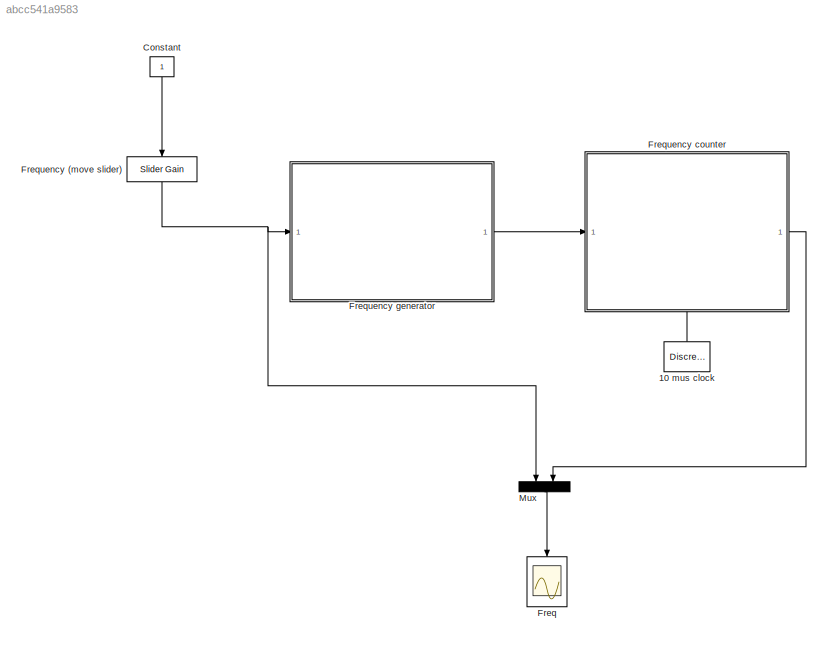
MODEL slx_abcc541a9583
KIND model
CONFIG AbsTol = auto
CONFIG EnableMultiTasking = on
CONFIG FixedStep = 5e-6
CONFIG MaxStep = auto
CONFIG MinStep = auto
CONFIG RelTol = 1e-4
CONFIG SampleTimeConstraint = Unconstrained
CONFIG Solver = ode45
CONFIG SolverName = ode45
CONFIG StartTime = 0.0
CONFIG StopTime = 50
BLOCK [DiscretePulseGenerator] 10 mus clock
  NameLocation = left
  Period = 1e-3
  Ports = [0, 1]
  PulseType = Time based
  PulseWidth = 50
BLOCK [Constant] Constant
  NameLocation = left
BLOCK [Scope] Freq
  Floating = off
  NameLocation = left
  NumInputPorts = 1
  Ports = [1]
  ScopeSpecificationString = Simulink.scopes.TimeScopeBlockCfg('CurrentConfiguration', extmgr.ConfigurationSet(extmgr.Configuration('Core','General UI',true),extmgr.Configuration('Core','Source UI',true),extmgr.Configuration('Sources','WiredSimulink',true,'DataLoggingVariableName','ScopeData1','DataLoggingSaveFormat','StructureWithTime','DataLoggingDecimation','1','DataLoggingDecimateData',true),extmgr.Configuration('Visuals'...<+1960ch>
BLOCK [Reference] Frequency (move slider)  REF=simulink/Math
Operations/Slider
Gain
  NameLocation = right
  Ports = [1, 1]
  SourceBlock = simulink/Math\nOperations/Slider\nGain
  SourceProductBaseCode = SL
  SourceType = Slider Gain
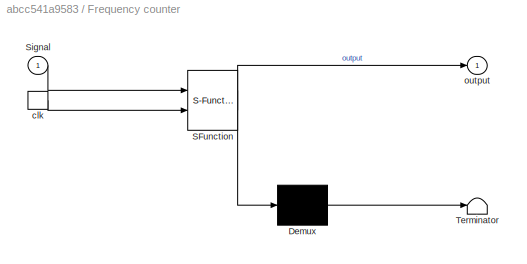
BLOCK [SubSystem] Frequency counter
  ErrorFcn = Stateflow.Translate.translate
  NameLocation = top
  PermitHierarchicalResolution = ExplicitOnly
  Ports = [1, 1, 0, 1]
  RequestExecContextInheritance = off
  SFBlockType = Chart
  TreatAsAtomicUnit = on
BLOCK [Demux] Frequency counter/ Demux 
  Outputs = 1
  Ports = [1, 1]
BLOCK [S-Function] Frequency counter/ SFunction 
  EnableBusSupport = on
  FunctionName = sf_sfun
  PortCounts = [2 2]
  Ports = [2, 2]
  SFcnIsStateOwnerBlock = off
  SFunctionDeploymentMode = off
  Tag = Stateflow S-Function 1
BLOCK [Terminator] Frequency counter/ Terminator 
BLOCK [Inport] Frequency counter/Signal
BLOCK [TriggerPort] Frequency counter/clk
  Ports = [0, 1]
  ShowOutputPort = on
  VariantControl = (inherit)
BLOCK [Outport] Frequency counter/output
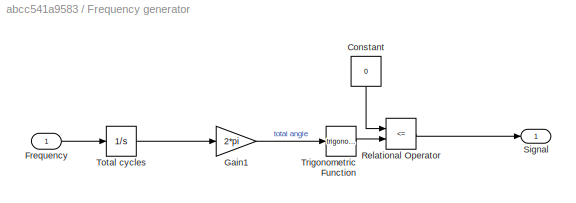
BLOCK [SubSystem] Frequency generator
  NameLocation = top
  Ports = [1, 1]
  RequestExecContextInheritance = off
BLOCK [Constant] Frequency generator/Constant
  NameLocation = left
  Value = 0
BLOCK [Inport] Frequency generator/Frequency
BLOCK [Gain] Frequency generator/Gain1
  Gain = 2*pi
  NameLocation = top
  OutDataTypeStr = Inherit: Same as input
  ParamDataTypeStr = Inherit: Same as input
  SaturateOnIntegerOverflow = on
BLOCK [RelationalOperator] Frequency generator/Relational Operator
  InputSameDT = off
  Operator = <=
  OutDataTypeStr = boolean
  Ports = [2, 1]
BLOCK [Outport] Frequency generator/Signal
BLOCK [Integrator] Frequency generator/Total cycles
  Ports = [1, 1]
BLOCK [Trigonometry] Frequency generator/Trigonometric Function
  Ports = [1, 1]
BLOCK [Mux] Mux
  DisplayOption = bar
  Inputs = 2
  NameLocation = left
  Ports = [2, 1]
LINE 10 mus clock:1 -> Frequency counter:trigger
LINE Constant:1 -> Frequency (move slider):1
NET Frequency (move slider):1 -> Frequency generator:1, Mux:1
LINE Frequency counter:1 -> Mux:2
LINE Frequency generator/Constant:1 -> Frequency generator/Relational Operator:1
LINE Frequency generator/Frequency:1 -> Frequency generator/Total cycles:1
LINE Frequency generator/Gain1:1 -> Frequency generator/Trigonometric Function:1
LINE Frequency generator/Relational Operator:1 -> Frequency generator/Signal:1
LINE Frequency generator/Total cycles:1 -> Frequency generator/Gain1:1
LINE Frequency generator/Trigonometric Function:1 -> Frequency generator/Relational Operator:2
LINE Frequency generator:1 -> Frequency counter:1
LINE Mux:1 -> Freq:1
note: NET lines group one-source signal fan-out (src -> all destinations, sorted); 1:1 wires keep LINE
CHART Frequency counter states=13 transitions=14
  STATE_LABEL 'FrequencyCounter'
  STATE_LABEL 'FrequencyCounterMethode'
  STATE_LABEL 'Clock\n'
  STATE_LABEL 'Clock'
  STATE_LABEL 'clk [time < 1000] \n{\n  time++;\n}  // Implementiert einfach \n   // einen Timer.'
  STATE_LABEL 'Counter'
  STATE_LABEL 'Counter'
  STATE_LABEL '[time == 1000]\n{\n  Measurement = counter;\n  time = 0;\n  counter = 0;\n  flag++;\n}'
  STATE_LABEL '[time < 1000 && Signal && hasChanged(Signal)]\n{\n  counter++;  // Zählt die Zyklen\n}'
  STATE_LABEL 'FrequencyTimerMethode'
  STATE_LABEL 'ClockStarter'
  STATE_LABEL 'FirstHigh'
  STATE_LABEL 'FirstLow'
  STATE_LABEL '[~hasChangedTo(Signal, 1)] / {cycles++;}'
  STATE_LABEL '[~hasChangedTo(Signal, 1)] / {cycles++;}'
  STATE_LABEL '[hasChangedTo(Signal, 1)] /{cycles = 1;}'
  STATE_LABEL '[hasChangedTo(Signal, 1)] {\n  Measurement2 = 1000/cycles;  // 1000, weil die Periodendauer 1/10^-3 s = 1000 s\n  cycles = 0;\n  flag++;\n }'
  STATE_LABEL '[hasChangedTo(Signal, 1)] /{cycles++;}  // Solange kein low kam, vergehen Zyklen'
  STATE_LABEL 'Evaluation'
  STATE_LABEL 'Test'
  STATE_LABEL 'Test2'
  STATE_LABEL '[Measurement >= 25] {\n                                   output = Measurement;\n                                   flag = 0;}'
  STATE_LABEL '[flag == 2]'
  STATE_LABEL '[Measurement < 25] {\n                                   output = Measurement2;\n                                   flag = 0;}'
  STATE_LABEL 'FrequencyCounterMethode'
  STATE_LABEL 'Clock\n'
  STATE_LABEL 'Clock'
  STATE_LABEL 'clk [time < 1000] \n{\n  time++;\n}  // Implementiert einfach \n   // einen Timer.'
  STATE_LABEL 'Counter'
  STATE_LABEL 'Counter'
  STATE_LABEL '[time == 1000]\n{\n  Measurement = counter;\n  time = 0;\n  counter = 0;\n  flag++;\n}'
  STATE_LABEL '[time < 1000 && Signal && hasChanged(Signal)]\n{\n  counter++;  // Zählt die Zyklen\n}'
  STATE_LABEL 'Clock\n'
  STATE_LABEL 'Clock'
  STATE_LABEL 'clk [time < 1000] \n{\n  time++;\n}  // Implementiert einfach \n   // einen Timer.'
  STATE_LABEL 'Clock'
  STATE_LABEL 'Counter'
  STATE_LABEL 'Counter'
  STATE_LABEL '[time == 1000]\n{\n  Measurement = counter;\n  time = 0;\n  counter = 0;\n  flag++;\n}'
  STATE_LABEL '[time < 1000 && Signal && hasChanged(Signal)]\n{\n  counter++;  // Zählt die Zyklen\n}'
CHART  states=0 transitions=0
